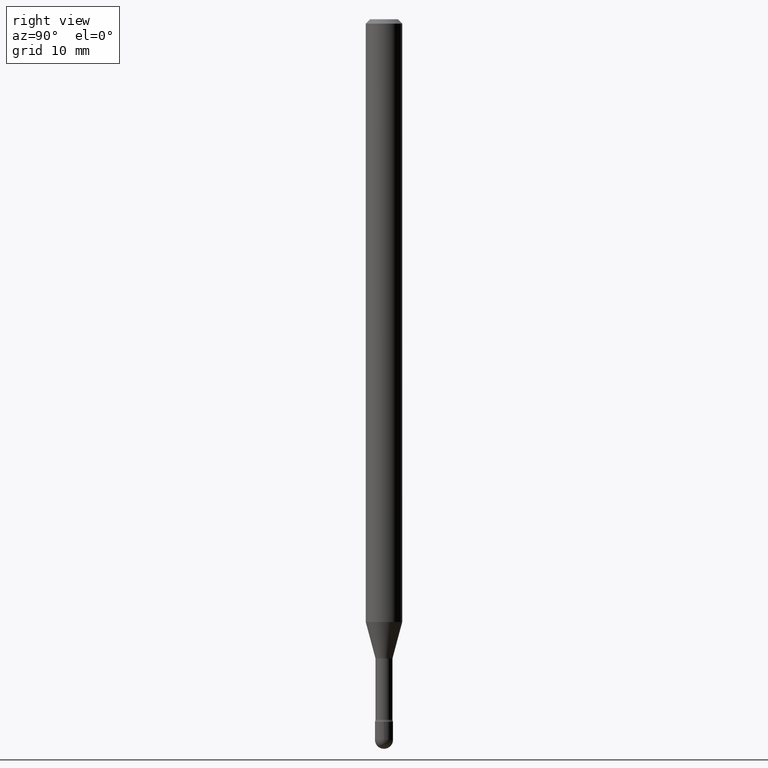
[diagram: clean part render]
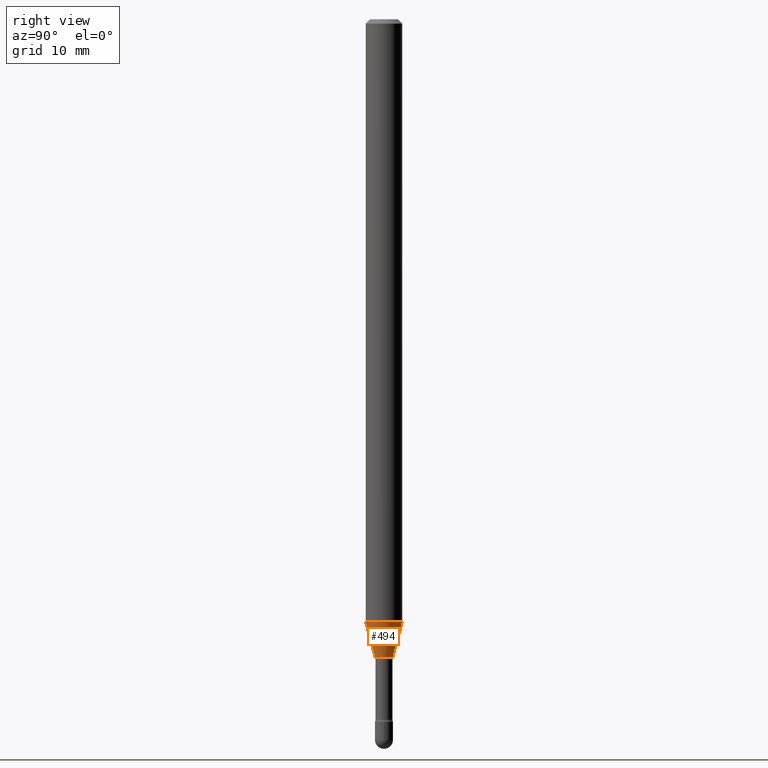
[diagram: same view with one face highlighted and labeled with its STEP entity id]
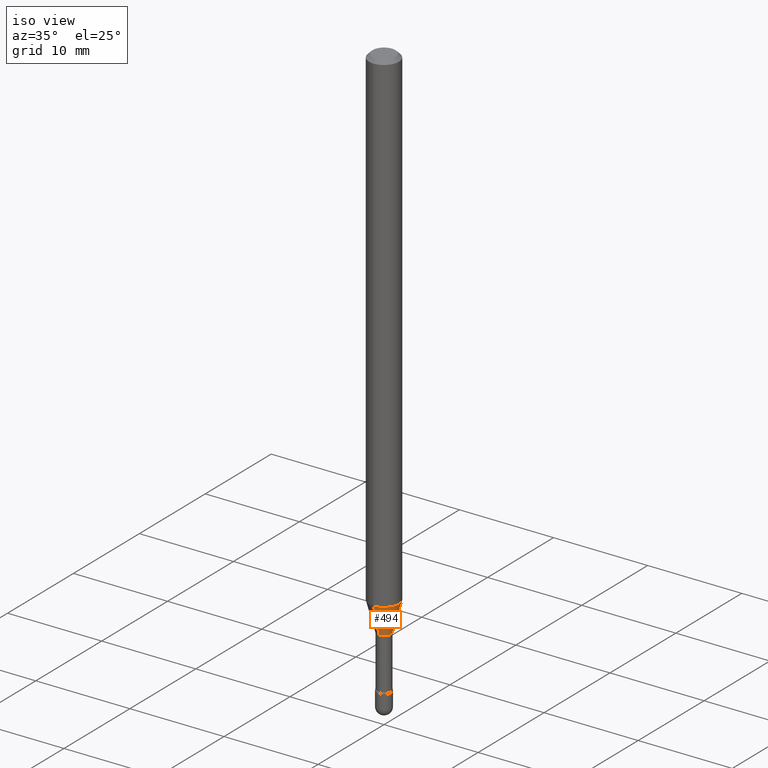
[diagram: same view with one face highlighted and labeled with its STEP entity id]
A machine part, right view. The second image highlights one B-rep face of the part: STEP entity #494.
A second angle (iso view) of the same face is appended — the face is thin or edge-on in the first view.
In plain terms, the highlighted conical surface has half-angle 15 deg.
Its self-contained STEP definition (entity closure, byte-faithful):
#14 = CARTESIAN_POINT ( 'NONE',  ( -2.071224423039476583E-16, -0.02966111260567161692, -2.188092501787273214 ) ) ;
#39 = EDGE_CURVE ( 'NONE', #247, #72, #57, .T. ) ;
#57 = LINE ( 'NONE', #242, #184 ) ;
#58 = ORIENTED_EDGE ( 'NONE', *, *, #39, .F. ) ;
#72 = VERTEX_POINT ( 'NONE', #187 ) ;
#77 = VERTEX_POINT ( 'NONE', #497 ) ;
#114 = DIRECTION ( 'NONE',  ( 1.839019923739595582E-15, 0.2588190451025242922, 0.9659258262890673130 ) ) ;
#150 = AXIS2_PLACEMENT_3D ( 'NONE', #169, #302, #565 ) ;
#169 = CARTESIAN_POINT ( 'NONE',  ( 5.350888010977423347E-29, -7.639718431393304776E-15, -2.188092501787273214 ) ) ;
#184 = VECTOR ( 'NONE', #192, 39.37007874015748854 ) ;
#187 = CARTESIAN_POINT ( 'NONE',  ( -4.364351673553412809E-16, -0.06250000000000724421, -2.065536105567578051 ) ) ;
#192 = DIRECTION ( 'NONE',  ( -1.807323732225325406E-15, -0.2588190451025175198, 0.9659258262890690894 ) ) ;
#199 = DIRECTION ( 'NONE',  ( -6.982962677686265133E-15, -1.000000000000000000, 0.000000000000000000 ) ) ;
#220 = CARTESIAN_POINT ( 'NONE',  ( 5.051181508320471471E-29, -7.211813140223045848E-15, -2.065536105567578051 ) ) ;
#237 = EDGE_LOOP ( 'NONE', ( #473, #432, #489, #58 ) ) ;
#242 = CARTESIAN_POINT ( 'NONE',  ( -2.071224423039476583E-16, -0.02966111260567161692, -2.188092501787273214 ) ) ;
#247 = VERTEX_POINT ( 'NONE', #14 ) ;
#255 = LINE ( 'NONE', #338, #427 ) ;
#258 = CONICAL_SURFACE ( 'NONE', #150, 0.02966111260566397720, 0.2617993877991495744 ) ;
#268 = DIRECTION ( 'NONE',  ( -6.982962677686265922E-15, -1.000000000000000000, 4.370956789862821150E-15 ) ) ;
#302 = DIRECTION ( 'NONE',  ( -2.445457861862202723E-29, 3.491497011736498785E-15, 1.000000000000000000 ) ) ;
#306 = AXIS2_PLACEMENT_3D ( 'NONE', #220, #355, #268 ) ;
#330 = EDGE_CURVE ( 'NONE', #77, #558, #255, .T. ) ;
#333 = EDGE_CURVE ( 'NONE', #247, #77, #374, .T. ) ;
#338 = CARTESIAN_POINT ( 'NONE',  ( 2.107548809652222305E-16, 0.02966111260565633748, -2.188092501787273214 ) ) ;
#341 = CIRCLE ( 'NONE', #306, 0.06250000000000000000 ) ;
#355 = DIRECTION ( 'NONE',  ( -2.445457861862202723E-29, 3.491497011736498785E-15, 1.000000000000000000 ) ) ;
#374 = CIRCLE ( 'NONE', #545, 0.02966111260566397720 ) ;
#422 = DIRECTION ( 'NONE',  ( -2.445457861862202723E-29, 3.491497011736498785E-15, 1.000000000000000000 ) ) ;
#427 = VECTOR ( 'NONE', #114, 39.37007874015748854 ) ;
#430 = EDGE_CURVE ( 'NONE', #72, #558, #341, .T. ) ;
#432 = ORIENTED_EDGE ( 'NONE', *, *, #330, .T. ) ;
#438 = FACE_OUTER_BOUND ( 'NONE', #237, .T. ) ;
#462 = CARTESIAN_POINT ( 'NONE',  ( 5.350888010977423347E-29, -7.639718431393304776E-15, -2.188092501787273214 ) ) ;
#473 = ORIENTED_EDGE ( 'NONE', *, *, #333, .T. ) ;
#488 = CARTESIAN_POINT ( 'NONE',  ( 4.440892098501129061E-16, 0.06249999999999276967, -2.065536105567578495 ) ) ;
#489 = ORIENTED_EDGE ( 'NONE', *, *, #430, .F. ) ;
#494 = ADVANCED_FACE ( 'NONE', ( #438 ), #258, .T. ) ;
#497 = CARTESIAN_POINT ( 'NONE',  ( 3.274220454076678148E-16, 0.02966111260565634095, -2.188092501787273214 ) ) ;
#545 = AXIS2_PLACEMENT_3D ( 'NONE', #462, #422, #199 ) ;
#558 = VERTEX_POINT ( 'NONE', #488 ) ;
#565 = DIRECTION ( 'NONE',  ( -6.982962677686265133E-15, -1.000000000000000000, 0.000000000000000000 ) ) ;